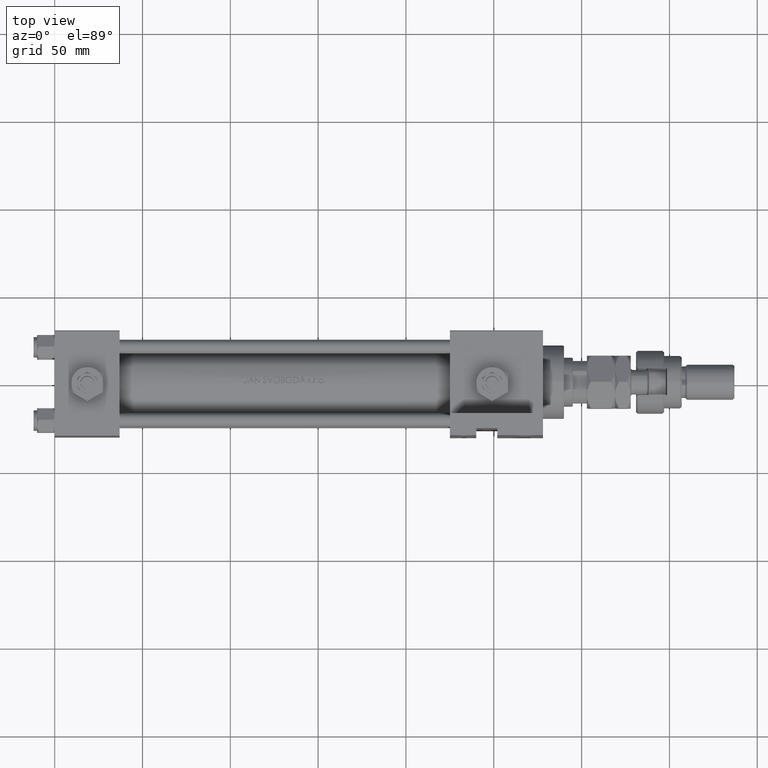
[diagram: clean part render]
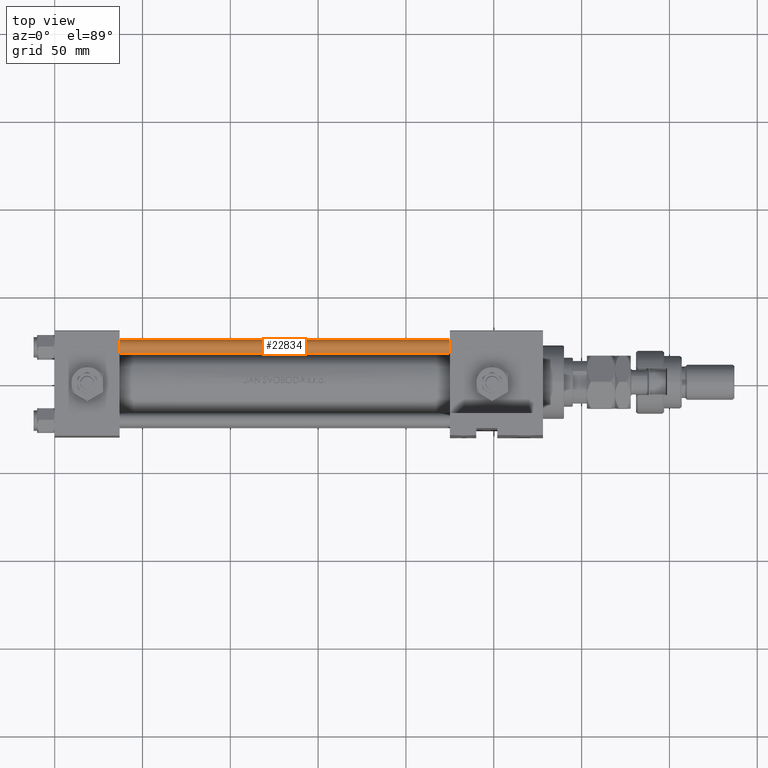
[diagram: same view with one face highlighted and labeled with its STEP entity id]
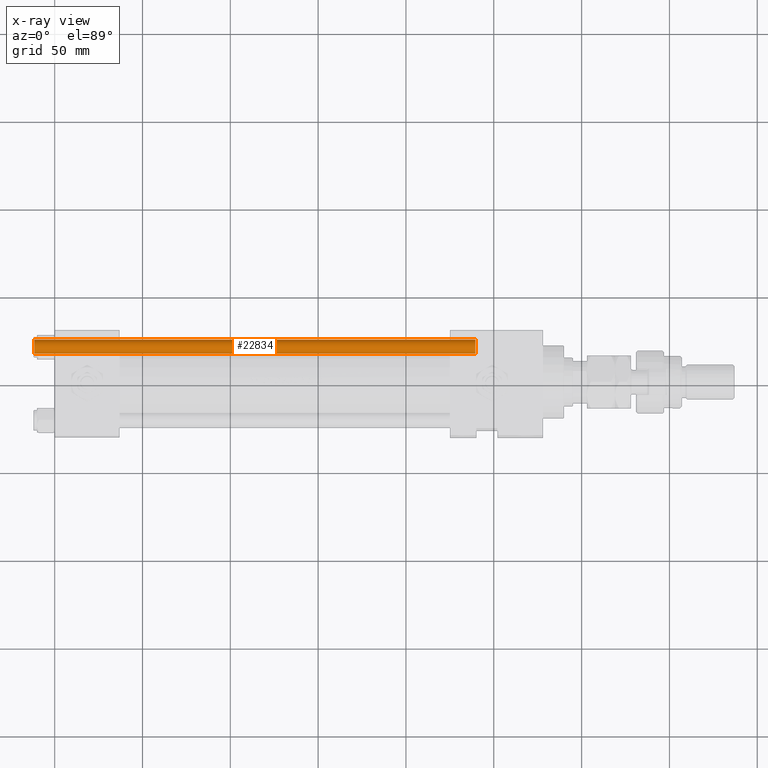
[diagram: x-ray of the same camera — body ghosted, the highlighted face saturated]
A machine part, top view. The second image highlights one B-rep face of the part: STEP entity #22834.
The next image is the same camera in x-ray: the body ghosted, the highlighted face saturated — about 0% of this face is hidden behind the body in this view.
In plain terms, the highlighted cylindrical surface (edge-blend (fillet) strip) has radius 4 mm, axis along (1, -0, 0).
Its self-contained STEP definition (entity closure, byte-faithful):
#999 = EDGE_LOOP ( 'NONE', ( #33419, #38363, #40181, #30904 ) ) ;
#3457 = EDGE_CURVE ( 'NONE', #44242, #39269, #8000, .T. ) ;
#3460 = VERTEX_POINT ( 'NONE', #28571 ) ;
#7417 = DIRECTION ( 'NONE',  ( 1.000000000000000000, 0.000000000000000000, 0.000000000000000000 ) ) ;
#7956 = EDGE_CURVE ( 'NONE', #3460, #44242, #48678, .T. ) ;
#8000 = CIRCLE ( 'NONE', #14924, 4.000000000000000000 ) ;
#8299 = FACE_OUTER_BOUND ( 'NONE', #999, .T. ) ;
#8398 = CIRCLE ( 'NONE', #49104, 4.000000000000000000 ) ;
#14175 = DIRECTION ( 'NONE',  ( -0.000000000000000000, -0.000000000000000000, -1.000000000000000000 ) ) ;
#14924 = AXIS2_PLACEMENT_3D ( 'NONE', #32929, #46373, #7417 ) ;
#15640 = CARTESIAN_POINT ( 'NONE',  ( 0.000000000000000000, 0.000000000000000000, 252.0000000000000000 ) ) ;
#22834 = ADVANCED_FACE ( 'NONE', ( #8299 ), #41377, .T. ) ;
#23320 = EDGE_CURVE ( 'NONE', #32673, #39269, #34809, .T. ) ;
#24811 = DIRECTION ( 'NONE',  ( 0.000000000000000000, 0.000000000000000000, -1.000000000000000000 ) ) ;
#24858 = DIRECTION ( 'NONE',  ( -1.000000000000000000, 0.000000000000000000, 0.000000000000000000 ) ) ;
#25099 = CARTESIAN_POINT ( 'NONE',  ( 4.000000000000000000, 4.898587196589412829E-16, 251.5000000000000568 ) ) ;
#28571 = CARTESIAN_POINT ( 'NONE',  ( -4.000000000000000000, 0.000000000000000000, 251.5000000000000568 ) ) ;
#28852 = VECTOR ( 'NONE', #53531, 1000.000000000000000 ) ;
#29179 = DIRECTION ( 'NONE',  ( -0.000000000000000000, -0.000000000000000000, -1.000000000000000000 ) ) ;
#30904 = ORIENTED_EDGE ( 'NONE', *, *, #3457, .T. ) ;
#32673 = VERTEX_POINT ( 'NONE', #25099 ) ;
#32929 = CARTESIAN_POINT ( 'NONE',  ( 0.000000000000000000, 0.000000000000000000, 0.5000000000000004441 ) ) ;
#33419 = ORIENTED_EDGE ( 'NONE', *, *, #23320, .F. ) ;
#34809 = LINE ( 'NONE', #51301, #40885 ) ;
#34833 = AXIS2_PLACEMENT_3D ( 'NONE', #15640, #29179, #24858 ) ;
#36471 = DIRECTION ( 'NONE',  ( 1.000000000000000000, 0.000000000000000000, 0.000000000000000000 ) ) ;
#38363 = ORIENTED_EDGE ( 'NONE', *, *, #53028, .T. ) ;
#39269 = VERTEX_POINT ( 'NONE', #49518 ) ;
#40181 = ORIENTED_EDGE ( 'NONE', *, *, #7956, .T. ) ;
#40216 = CARTESIAN_POINT ( 'NONE',  ( -4.000000000000000000, 0.000000000000000000, 0.5000000000000004441 ) ) ;
#40885 = VECTOR ( 'NONE', #14175, 1000.000000000000000 ) ;
#41090 = CARTESIAN_POINT ( 'NONE',  ( -4.000000000000000000, 0.000000000000000000, 252.0000000000000000 ) ) ;
#41377 = CYLINDRICAL_SURFACE ( 'NONE', #34833, 4.000000000000000000 ) ;
#44242 = VERTEX_POINT ( 'NONE', #40216 ) ;
#44322 = CARTESIAN_POINT ( 'NONE',  ( 0.000000000000000000, 0.000000000000000000, 251.5000000000000568 ) ) ;
#46373 = DIRECTION ( 'NONE',  ( -0.000000000000000000, -0.000000000000000000, 1.000000000000000000 ) ) ;
#48678 = LINE ( 'NONE', #41090, #28852 ) ;
#49104 = AXIS2_PLACEMENT_3D ( 'NONE', #44322, #24811, #36471 ) ;
#49518 = CARTESIAN_POINT ( 'NONE',  ( 4.000000000000000000, 4.898587196589412829E-16, 0.5000000000000004441 ) ) ;
#51301 = CARTESIAN_POINT ( 'NONE',  ( 4.000000000000000000, 4.898587196589412829E-16, 252.0000000000000000 ) ) ;
#53028 = EDGE_CURVE ( 'NONE', #32673, #3460, #8398, .T. ) ;
#53531 = DIRECTION ( 'NONE',  ( -0.000000000000000000, -0.000000000000000000, -1.000000000000000000 ) ) ;